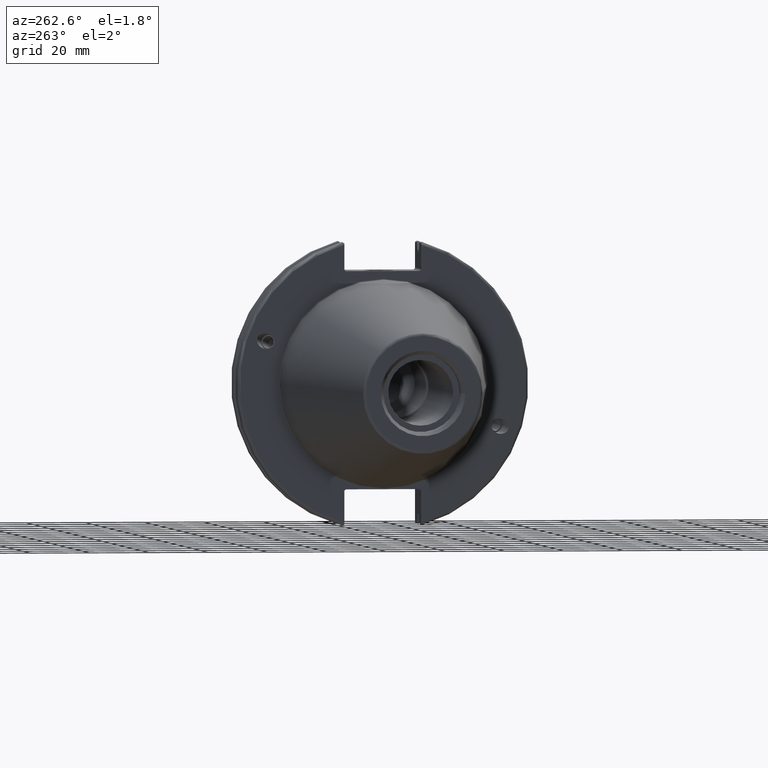
[diagram: clean part render]
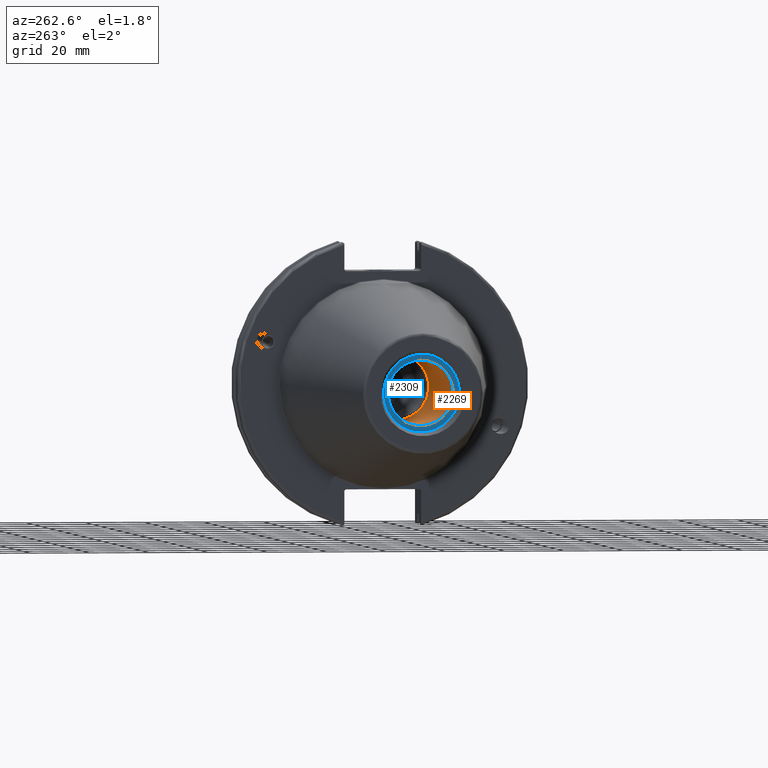
[diagram: same view with the hole feature highlighted: cylindrical wall and planar end face, labeled with their STEP entity ids]
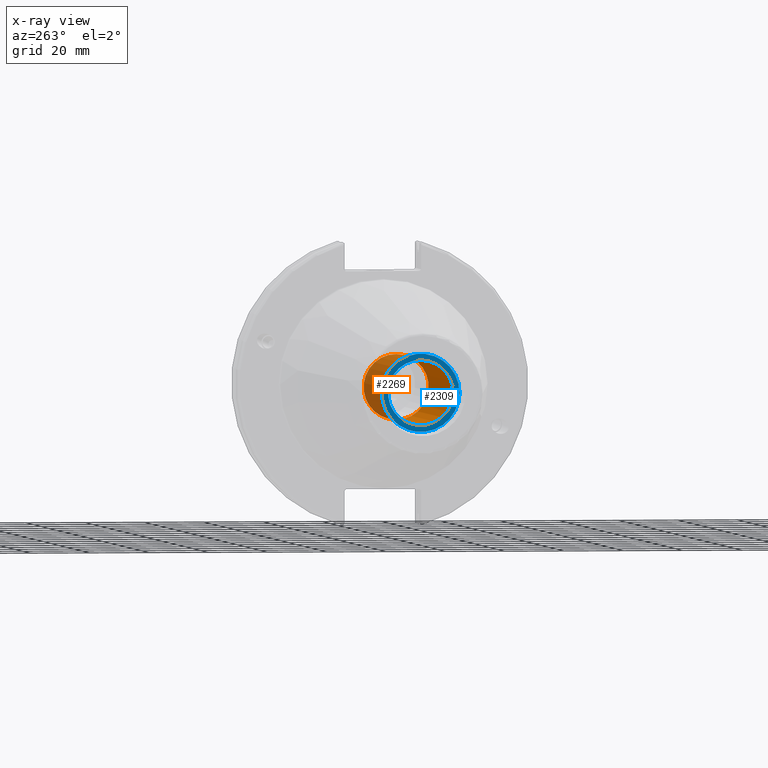
[diagram: x-ray of the same camera — body ghosted, the hole faces saturated]
A machine part, auxiliary view. The highlighted faces form one hole feature of diameter 21.971 mm: the cylindrical wall (entity #2269, orange) and its adjacent planar end face (entity #2309, blue) — they share a circular edge in the B-rep.
The next image is the same camera in x-ray (body ghosted, the hole faces saturated) — the bore reads through the body.
Wall:
#234=FACE_OUTER_BOUND('',#359,.T.);
#359=EDGE_LOOP('',(#1883,#1884,#1885,#1886,#1887));
#461=LINE('',#4234,#568);
#568=VECTOR('',#3142,10.9855);
#779=CIRCLE('',#2555,10.9855);
#780=CIRCLE('',#2556,10.9855);
#781=CIRCLE('',#2558,10.9855);
#1003=VERTEX_POINT('',#4226);
#1004=VERTEX_POINT('',#4227);
#1005=VERTEX_POINT('',#4232);
#1318=EDGE_CURVE('',#1003,#1004,#779,.T.);
#1320=EDGE_CURVE('',#1004,#1003,#780,.T.);
#1321=EDGE_CURVE('',#1005,#1005,#781,.T.);
#1322=EDGE_CURVE('',#1005,#1004,#461,.T.);
#1883=ORIENTED_EDGE('',*,*,#1321,.F.);
#1884=ORIENTED_EDGE('',*,*,#1322,.T.);
#1885=ORIENTED_EDGE('',*,*,#1318,.F.);
#1886=ORIENTED_EDGE('',*,*,#1320,.F.);
#1887=ORIENTED_EDGE('',*,*,#1322,.F.);
#2195=CYLINDRICAL_SURFACE('',#2557,10.9855);
#2269=ADVANCED_FACE('',(#234),#2195,.F.);
#2555=AXIS2_PLACEMENT_3D('',#4228,#3133,#3134);
#2556=AXIS2_PLACEMENT_3D('',#4230,#3136,#3137);
#2557=AXIS2_PLACEMENT_3D('',#4231,#3138,#3139);
#2558=AXIS2_PLACEMENT_3D('',#4233,#3140,#3141);
#3133=DIRECTION('center_axis',(-1.,0.,0.));
#3134=DIRECTION('ref_axis',(0.,0.,1.));
#3136=DIRECTION('center_axis',(-1.,0.,0.));
#3137=DIRECTION('ref_axis',(0.,0.,1.));
#3138=DIRECTION('center_axis',(-1.,0.,0.));
#3139=DIRECTION('ref_axis',(0.,0.,1.));
#3140=DIRECTION('center_axis',(1.,0.,0.));
#3141=DIRECTION('ref_axis',(0.,0.,1.));
#3142=DIRECTION('',(1.,0.,0.));
#4226=CARTESIAN_POINT('',(-31.6,0.,10.9855));
#4227=CARTESIAN_POINT('',(-31.6,-1.34533574120333E-15,-10.9855));
#4228=CARTESIAN_POINT('Origin',(-31.6,0.,0.));
#4230=CARTESIAN_POINT('Origin',(-31.6,0.,0.));
#4231=CARTESIAN_POINT('Origin',(-66.6,0.,0.));
#4232=CARTESIAN_POINT('',(-95.25,1.34533574120333E-15,-10.9855));
#4233=CARTESIAN_POINT('Origin',(-95.25,0.,0.));
#4234=CARTESIAN_POINT('',(-66.6,-1.34533574120333E-15,-10.9855));
End face:
#67=PLANE('',#2633);
#109=FACE_BOUND('',#405,.T.);
#274=FACE_OUTER_BOUND('',#404,.T.);
#404=EDGE_LOOP('',(#2130,#2131));
#405=EDGE_LOOP('',(#2132));
#781=CIRCLE('',#2558,10.9855);
#817=CIRCLE('',#2634,13.1);
#818=CIRCLE('',#2635,13.1);
#1005=VERTEX_POINT('',#4232);
#1081=VERTEX_POINT('',#4576);
#1082=VERTEX_POINT('',#4577);
#1321=EDGE_CURVE('',#1005,#1005,#781,.T.);
#1437=EDGE_CURVE('',#1081,#1082,#817,.T.);
#1438=EDGE_CURVE('',#1082,#1081,#818,.T.);
#2130=ORIENTED_EDGE('',*,*,#1437,.F.);
#2131=ORIENTED_EDGE('',*,*,#1438,.F.);
#2132=ORIENTED_EDGE('',*,*,#1321,.T.);
#2309=ADVANCED_FACE('',(#274,#109),#67,.T.);
#2558=AXIS2_PLACEMENT_3D('',#4233,#3140,#3141);
#2633=AXIS2_PLACEMENT_3D('',#4575,#3346,#3347);
#2634=AXIS2_PLACEMENT_3D('',#4578,#3348,#3349);
#2635=AXIS2_PLACEMENT_3D('',#4579,#3350,#3351);
#3140=DIRECTION('center_axis',(1.,0.,0.));
#3141=DIRECTION('ref_axis',(0.,0.,1.));
#3346=DIRECTION('center_axis',(-1.,0.,0.));
#3347=DIRECTION('ref_axis',(0.,0.,1.));
#3348=DIRECTION('center_axis',(1.,0.,0.));
#3349=DIRECTION('ref_axis',(0.,0.,-1.));
#3350=DIRECTION('center_axis',(1.,0.,0.));
#3351=DIRECTION('ref_axis',(0.,0.,-1.));
#4232=CARTESIAN_POINT('',(-95.25,1.34533574120333E-15,-10.9855));
#4233=CARTESIAN_POINT('Origin',(-95.25,0.,0.));
#4575=CARTESIAN_POINT('Origin',(-95.25,13.1,0.));
#4576=CARTESIAN_POINT('',(-95.25,13.1,0.));
#4577=CARTESIAN_POINT('',(-95.25,-13.1,-1.60428730688303E-15));
#4578=CARTESIAN_POINT('Origin',(-95.25,0.,0.));
#4579=CARTESIAN_POINT('Origin',(-95.25,0.,0.));